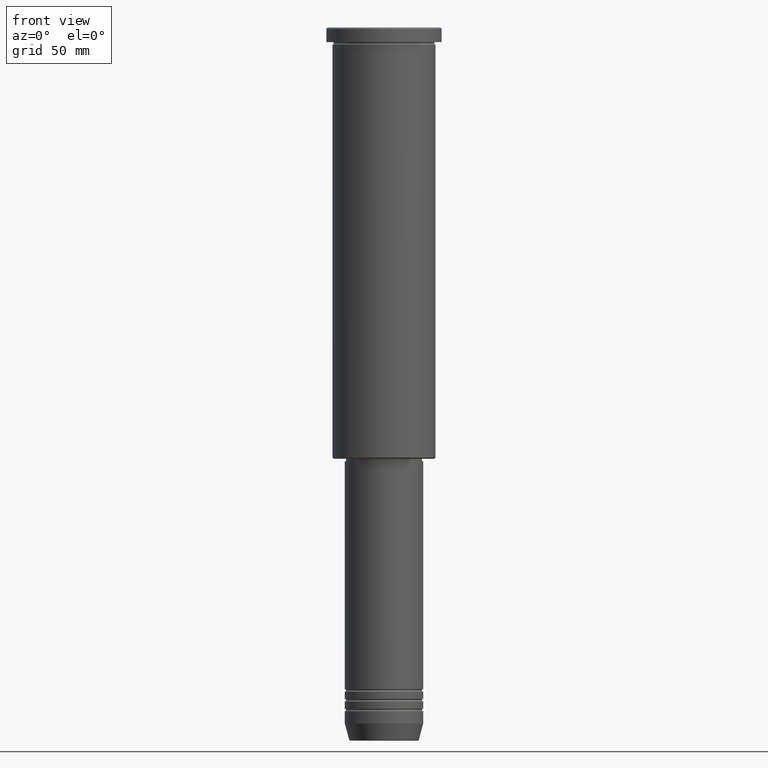
[diagram: clean part render]
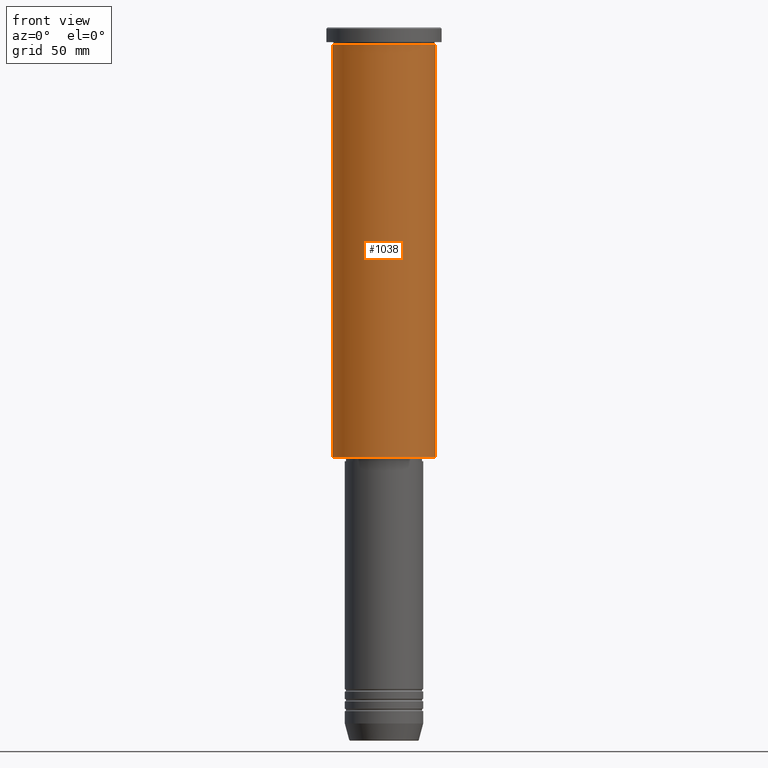
[diagram: same view with one face highlighted and labeled with its STEP entity id]
A machine part, front view. The second image highlights one B-rep face of the part: STEP entity #1038.
In plain terms, the highlighted cylindrical surface (partial cylindrical patch) has radius 21 mm, axis along (-0, -0, 1).
Its self-contained STEP definition (entity closure, byte-faithful):
#54 = VERTEX_POINT ( 'NONE', #642 ) ;
#84 = ORIENTED_EDGE ( 'NONE', *, *, #726, .F. ) ;
#130 = CARTESIAN_POINT ( 'NONE',  ( 21.00000000000000000, 0.000000000000000000, -175.4999999999999147 ) ) ;
#168 = ORIENTED_EDGE ( 'NONE', *, *, #764, .T. ) ;
#176 = DIRECTION ( 'NONE',  ( -0.000000000000000000, -0.000000000000000000, 1.000000000000000000 ) ) ;
#182 = LINE ( 'NONE', #999, #990 ) ;
#223 = ORIENTED_EDGE ( 'NONE', *, *, #811, .T. ) ;
#247 = VERTEX_POINT ( 'NONE', #130 ) ;
#318 = DIRECTION ( 'NONE',  ( -0.000000000000000000, -0.000000000000000000, 1.000000000000000000 ) ) ;
#373 = VECTOR ( 'NONE', #748, 1000.000000000000000 ) ;
#434 = CARTESIAN_POINT ( 'NONE',  ( 0.000000000000000000, 0.000000000000000000, 0.000000000000000000 ) ) ;
#519 = CIRCLE ( 'NONE', #948, 21.00000000000000000 ) ;
#533 = EDGE_CURVE ( 'NONE', #1115, #678, #816, .T. ) ;
#598 = ORIENTED_EDGE ( 'NONE', *, *, #533, .F. ) ;
#633 = DIRECTION ( 'NONE',  ( -0.000000000000000000, -0.000000000000000000, 1.000000000000000000 ) ) ;
#642 = CARTESIAN_POINT ( 'NONE',  ( -21.00000000000000000, 2.571758278209441661E-15, -175.4999999999999147 ) ) ;
#660 = AXIS2_PLACEMENT_3D ( 'NONE', #434, #318, #1057 ) ;
#678 = VERTEX_POINT ( 'NONE', #708 ) ;
#689 = CYLINDRICAL_SURFACE ( 'NONE', #660, 21.00000000000000000 ) ;
#702 = CARTESIAN_POINT ( 'NONE',  ( -21.00000000000000000, 2.571758278209441661E-15, -6.999999999999993783 ) ) ;
#708 = CARTESIAN_POINT ( 'NONE',  ( 21.00000000000000000, 0.000000000000000000, -6.999999999999993783 ) ) ;
#724 = DIRECTION ( 'NONE',  ( -0.000000000000000000, -0.000000000000000000, 1.000000000000000000 ) ) ;
#726 = EDGE_CURVE ( 'NONE', #54, #1115, #182, .T. ) ;
#748 = DIRECTION ( 'NONE',  ( -0.000000000000000000, -0.000000000000000000, 1.000000000000000000 ) ) ;
#764 = EDGE_CURVE ( 'NONE', #54, #247, #519, .T. ) ;
#789 = FACE_OUTER_BOUND ( 'NONE', #1046, .T. ) ;
#811 = EDGE_CURVE ( 'NONE', #247, #678, #919, .T. ) ;
#816 = CIRCLE ( 'NONE', #988, 21.00000000000000000 ) ;
#831 = CARTESIAN_POINT ( 'NONE',  ( 21.00000000000000000, 0.000000000000000000, 0.000000000000000000 ) ) ;
#906 = DIRECTION ( 'NONE',  ( -1.000000000000000000, 0.000000000000000000, 0.000000000000000000 ) ) ;
#914 = CARTESIAN_POINT ( 'NONE',  ( 0.000000000000000000, 0.000000000000000000, -175.4999999999999147 ) ) ;
#919 = LINE ( 'NONE', #831, #373 ) ;
#935 = CARTESIAN_POINT ( 'NONE',  ( 0.000000000000000000, 0.000000000000000000, -6.999999999999993783 ) ) ;
#948 = AXIS2_PLACEMENT_3D ( 'NONE', #914, #724, #906 ) ;
#988 = AXIS2_PLACEMENT_3D ( 'NONE', #935, #633, #1005 ) ;
#990 = VECTOR ( 'NONE', #176, 1000.000000000000000 ) ;
#999 = CARTESIAN_POINT ( 'NONE',  ( -21.00000000000000000, 2.571758278209441661E-15, 0.000000000000000000 ) ) ;
#1005 = DIRECTION ( 'NONE',  ( 1.000000000000000000, 0.000000000000000000, 0.000000000000000000 ) ) ;
#1038 = ADVANCED_FACE ( 'NONE', ( #789 ), #689, .T. ) ;
#1046 = EDGE_LOOP ( 'NONE', ( #84, #168, #223, #598 ) ) ;
#1057 = DIRECTION ( 'NONE',  ( 1.000000000000000000, 0.000000000000000000, 0.000000000000000000 ) ) ;
#1115 = VERTEX_POINT ( 'NONE', #702 ) ;